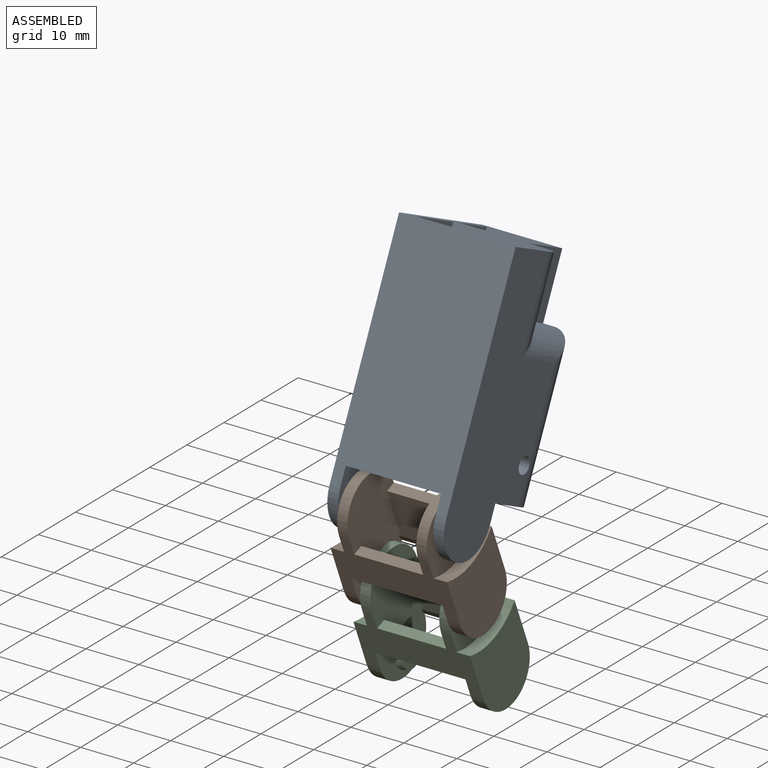
[diagram: assembled view]
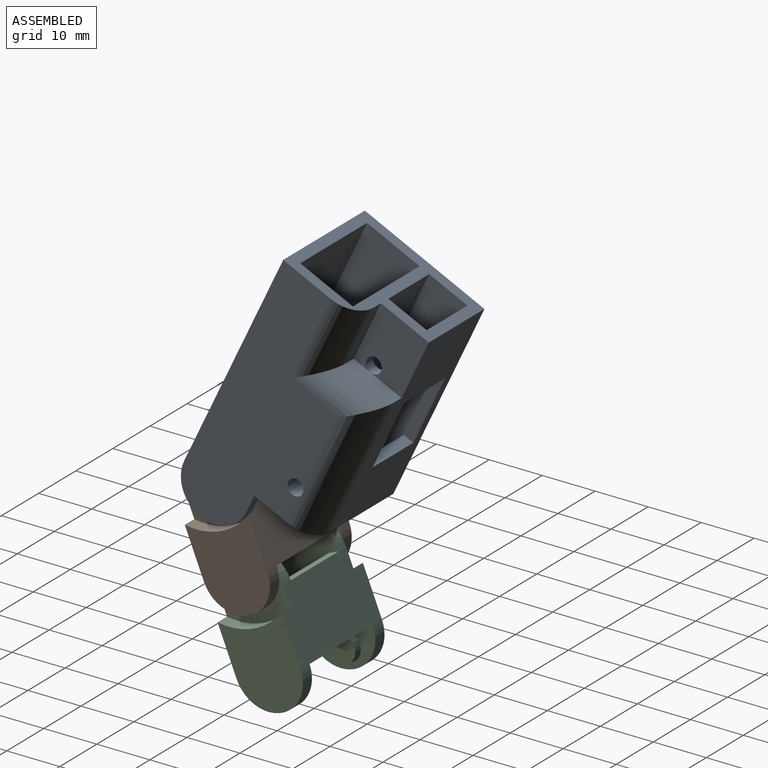
[diagram: assembled view, second angle]
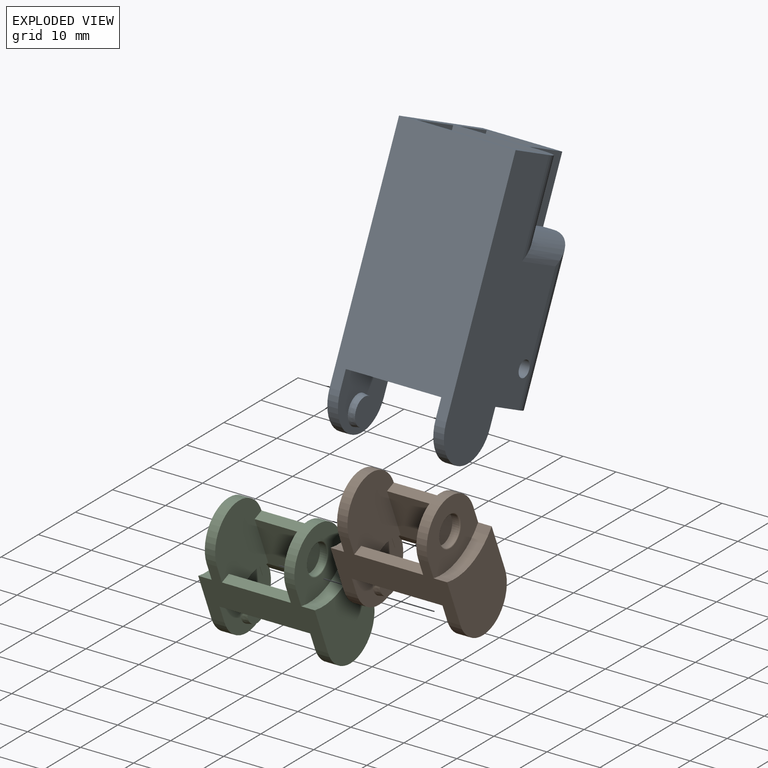
[diagram: exploded view]
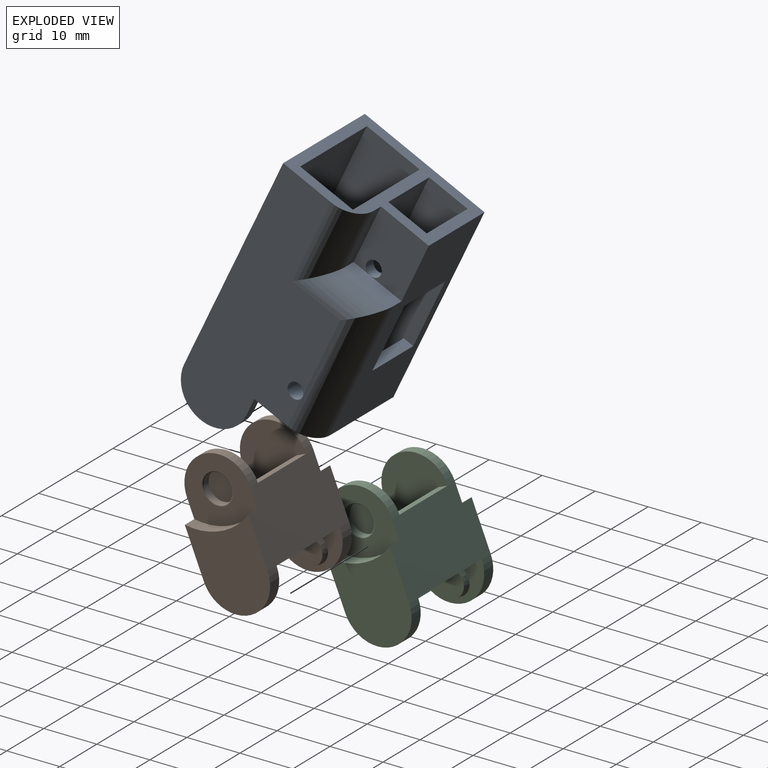
[diagram: exploded view, second angle]
ASSEMBLY  parts=3 mates=2
PART A: 39 faces, bbox 25x50x22 mm
  f0: plane 40x17mm, normal (-1,0,0), area 502mm2, adj f3,f10,f12,f13,f21,f23,f24,f34
  f1: plane 14x11mm, normal (1,0,0), area 154mm2, adj f3,f13,f24,f35
  f2: plane 14x11mm, normal (-1,0,0), area 154mm2, adj f3,f13,f24,f32
  f3: plane 25x22mm, normal (0,-1,0), area 188.6mm2, adj f0,f1,f2,f4,f7,f12,f13,f14
  f4: plane 50x20mm, normal (0,0,1), area 734.8mm2, adj f3,f6,f7,f9,f10,f31,f36,f37
  f5: plane 18x2mm, normal (0,1,0), area 36mm2, adj f7,f13,f14,f19
  f6: plane 3.5x2mm, normal (-1,0,0), area 7mm2, adj f4,f9,f10,f14
  f7: plane 43.5x22mm, normal (1,0,0), area 894mm2, adj f3,f4,f5,f8,f9,f12,f13,f14
  f8: cylinder r=6.5mm len=13mm, axis (0,0,-1), area 40.8mm2, adj f7,f11,f12,f13
  f9: cylinder r=6.5mm len=13mm, axis (0,0,-1), area 40.8mm2, adj f4,f6,f7,f14
  f10: plane 22x12mm, normal (0,1,0), area 258.6mm2, adj f0,f4,f6,f11,f12,f20,f36
  f11: plane 3.5x2mm, normal (-1,0,0), area 7mm2, adj f8,f10,f12,f13
  f12: plane 50x25mm, normal (0,0,-1), area 1097.7mm2, adj f0,f3,f7,f8,f10,f11,f28,f29
  f13: plane 50x25mm, normal (0,0,1), area 874mm2, adj f0,f1,f2,f3,f5,f7,f8,f11
  f14: plane 50x13mm, normal (0,0,-1), area 528.1mm2, adj f3,f5,f6,f7,f9,f17,f19,f20
  f15: cone r=2.75mm half-angle=10deg, axis (0,0,-1), area 20.2mm2, adj f13,f16
  f16: plane 5.08x5.08mm, normal (0,0,1), area 20.2mm2, adj f15
  f17: cone r=2.75mm half-angle=10deg, axis (0,0,1), area 20.2mm2, adj f14,f18
  f18: plane 5.08x5.08mm, normal (0,0,-1), area 20.2mm2, adj f17
  f19: plane 40x18mm, normal (-1,0,0), area 720mm2, adj f3,f5,f13,f14
  f20: plane 40x18mm, normal (1,0,0), area 566mm2, adj f3,f10,f13,f14,f24,f32,f33
  f21: plane 10x2mm, normal (0,-1,0), area 20mm2, adj f0,f22,f23,f38
  f22: plane 12x2mm, normal (-1,0,0), area 24mm2, adj f3,f21,f23,f37
  f23: plane 12x10mm, normal (0,0,1), area 112.9mm2, adj f0,f3,f21,f22,f30
  f24: plane 38x12mm, normal (0,0,-1), area 345.9mm2, adj f0,f1,f2,f3,f20,f25,f26,f27
  f25: plane 11x10mm, normal (1,0,0), area 110mm2, adj f13,f24,f27,f34
  f26: plane 11x10mm, normal (-1,0,0), area 110mm2, adj f13,f24,f27,f33
  f27: plane 11x8mm, normal (0,-1,0), area 88mm2, adj f13,f24,f25,f26
  f28: cylinder r=1.5mm len=3mm, axis (0,0,-1), area 18.8mm2, adj f12,f13
  f29: cylinder r=1.5mm len=3mm, axis (0,0,-1), area 18.8mm2, adj f12,f13
  f30: cylinder r=1.5mm len=3mm, axis (0,0,-1), area 18.8mm2, adj f23,f24
  f31: cylinder r=1.5mm len=9mm, axis (0,0,-1), area 84.8mm2, adj f4,f24
  f32: plane 11x2mm, normal (0,1,0), area 22mm2, adj f2,f13,f20,f24
  f33: plane 11x2mm, normal (0,-1,0), area 22mm2, adj f13,f20,f24,f26
  f34: plane 11x2mm, normal (0,-1,0), area 22mm2, adj f0,f13,f24,f25
  f35: plane 11x2mm, normal (0,1,0), area 22mm2, adj f0,f1,f13,f24
  f36: cylinder r=5mm len=28mm, axis (0,1,0), area 205.6mm2, adj f0,f4,f10,f38
  f37: cylinder r=5mm len=17mm, axis (0,-1,0), area 108.5mm2, adj f3,f4,f22,f38
  f38: cylinder r=5mm len=15mm, axis (1,0,0), area 78.5mm2, adj f4,f21,f36,f37
PART B: 38 faces, bbox 22x26x13 mm
  f0: plane 22x13mm, normal (0,0,1), area 162.4mm2, adj f2,f6,f7,f8,f9,f10,f11,f12
  f1: plane 22x13mm, normal (0,0,-1), area 267.7mm2, adj f5,f8,f11,f12,f14,f15,f16,f17
  f2: plane 17.1x11mm, normal (0,1,0), area 37.2mm2, adj f0,f4,f6,f7,f10,f13,f19,f34
  f3: plane 2.05x0.35mm, normal (0,1,0), area 0.7mm2, adj f4,f7,f13,f36
  f4: plane 17.1x13mm, normal (0,0,1), area 129.1mm2, adj f2,f3,f5,f6,f7,f10,f13,f30
  f5: plane 17.1x2mm, normal (0,1,0), area 3.2mm2, adj f1,f4,f6,f13,f32,f33
  f6: plane 13x10mm, normal (-1,0,0), area 81.1mm2, adj f0,f2,f4,f5,f18,f26
  f7: plane 16x13mm, normal (1,0,0), area 150.3mm2, adj f0,f2,f3,f4,f9,f16,f19,f30
  f8: plane 13.01x12.01mm, normal (-1,0,0), area 102.5mm2, adj f0,f1,f16,f28,f31
  f9: plane 13x2mm, normal (0,-1,0), area 26mm2, adj f0,f7,f10,f19
  f10: plane 16x13mm, normal (-1,0,0), area 150.3mm2, adj f0,f2,f4,f9,f15,f19,f30,f34
  f11: plane 13.01x12.01mm, normal (1,0,0), area 102.5mm2, adj f0,f1,f15,f29,f37
  f12: plane 15.91x13mm, normal (1,0,0), area 171.9mm2, adj f0,f1,f18,f37
  f13: plane 13x11.5mm, normal (1,0,0), area 93.2mm2, adj f0,f2,f3,f4,f5,f17,f24,f33
  f14: plane 15.91x13mm, normal (-1,0,0), area 171.9mm2, adj f0,f1,f17,f31
  f15: cylinder r=6.5mm len=13mm, axis (-1,0,0), area 39.8mm2, adj f0,f1,f10,f11
  f16: cylinder r=6.5mm len=13mm, axis (-1,0,0), area 39.8mm2, adj f0,f1,f7,f8
  f17: cylinder r=6.5mm len=13mm, axis (1,0,0), area 50mm2, adj f0,f1,f13,f14
  f18: cylinder r=6.5mm len=13mm, axis (1,0,0), area 50mm2, adj f0,f1,f6,f12
  f19: plane 13x6mm, normal (0,0,-1), area 78mm2, adj f2,f7,f9,f10
  f20: cylinder r=2.75mm len=5.5mm, axis (1,0,0), area 22.5mm2, adj f21,f29
  f21: plane 5.5x5.5mm, normal (1,0,0), area 23.8mm2, adj f20
  f22: cylinder r=2.75mm len=5.5mm, axis (-1,0,0), area 22.5mm2, adj f23,f28
  f23: plane 5.5x5.5mm, normal (-1,0,0), area 23.8mm2, adj f22
  f24: cone r=2.75mm half-angle=10deg, axis (-1,0,0), area 20.2mm2, adj f13,f25
  f25: plane 5.08x5.08mm, normal (1,0,0), area 20.2mm2, adj f24
  f26: cone r=2.75mm half-angle=10deg, axis (1,0,0), area 20.2mm2, adj f6,f27
  f27: plane 5.08x5.08mm, normal (-1,0,0), area 20.2mm2, adj f26
  f28: bspline ~5.9x5.9mm, area 5.7mm2, adj f8,f22
  f29: bspline ~5.9x5.9mm, area 5.7mm2, adj f11,f20
  f30: plane 13x2mm, normal (0,-1,0), area 26mm2, adj f1,f4,f7,f10
  f31: cylinder r=12mm len=13mm, axis (1,0,0), area 35mm2, adj f0,f1,f8,f14
  f32: plane 3.19x1.82mm, normal (-1,0,0), area 3.6mm2, adj f4,f5,f33
  f33: cylinder r=6.5mm len=17mm, axis (-1,0,0), area 63.3mm2, adj f4,f5,f13,f32
  f34: cylinder r=6.5mm len=8.31mm, axis (-1,0,0), area 17.6mm2, adj f2,f10,f35
  f35: plane 8.31x1.5mm, normal (-1,0,0), area 8.5mm2, adj f2,f34
  f36: cylinder r=6.5mm len=8.31mm, axis (-1,0,0), area 18.5mm2, adj f2,f3,f7,f13
  f37: cylinder r=12mm len=13mm, axis (-1,0,0), area 35mm2, adj f0,f1,f11,f12
PART C: same geometry as B
PLACE A rot(axis=(-0.65,0.41,-0.65),135.6deg) t=(-24.51,32.56,59.99)mm
PLACE B rot(axis=(0,0.83,-0.56),180deg) t=(-13.46,22.86,38.56)mm
PLACE C rot(axis=(0,0.83,-0.56),180deg) t=(-13.46,29.05,23.59)mm
MATE revolute A.f15 <-> B.f15  axis (1,0,0) through (-22.51,15.52,39.31)mm
MATE revolute B.f26 <-> C.f20  axis (1,0,0) through (-22.01,21.48,24.89)mm
